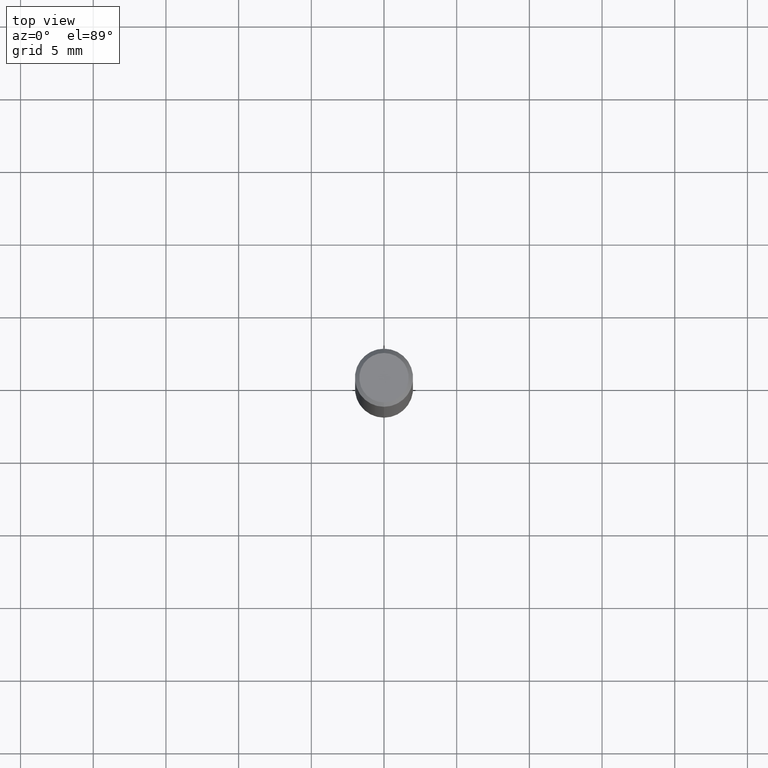
[diagram: clean part render]
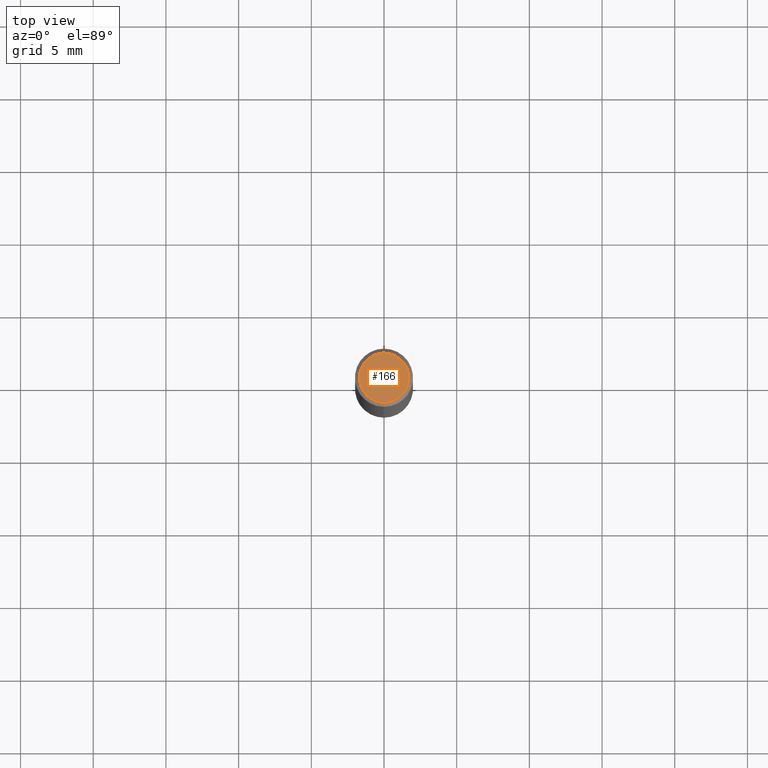
[diagram: same view with one face highlighted and labeled with its STEP entity id]
A machine part, top view. The second image highlights one B-rep face of the part: STEP entity #166.
In plain terms, the highlighted planar face has unit normal (-0, 0, 1).
Its self-contained STEP definition (entity closure, byte-faithful):
#120=VERTEX_POINT('',#250);
#144=EDGE_CURVE('',#146,#120,#277,.T.);
#146=VERTEX_POINT('',#279);
#166=ADVANCED_FACE('',(#303),#304,.T.);
#180=EDGE_CURVE('',#120,#146,#319,.T.);
#250=CARTESIAN_POINT('',(2.08183080149804E-016,-1.7,0.0));
#277=CIRCLE('',#425,1.7);
#279=CARTESIAN_POINT('',(0.0,1.7,0.0));
#303=FACE_OUTER_BOUND('',#456,.T.);
#304=PLANE('',#457);
#319=CIRCLE('',#477,1.7);
#425=AXIS2_PLACEMENT_3D('',#567,#568,#569);
#456=EDGE_LOOP('',(#618,#619));
#457=AXIS2_PLACEMENT_3D('',#620,#621,#622);
#477=AXIS2_PLACEMENT_3D('',#635,#636,#637);
#567=CARTESIAN_POINT('',(0.0,0.0,0.0));
#568=DIRECTION('',(0.0,0.0,-1.0));
#569=DIRECTION('',(0.0,1.0,0.0));
#618=ORIENTED_EDGE('',*,*,#144,.F.);
#619=ORIENTED_EDGE('',*,*,#180,.F.);
#620=CARTESIAN_POINT('',(0.0,0.85,0.0));
#621=DIRECTION('',(-0.0,0.0,1.0));
#622=DIRECTION('',(0.0,-1.0,0.0));
#635=CARTESIAN_POINT('',(0.0,0.0,0.0));
#636=DIRECTION('',(0.0,0.0,-1.0));
#637=DIRECTION('',(0.0,1.0,0.0));